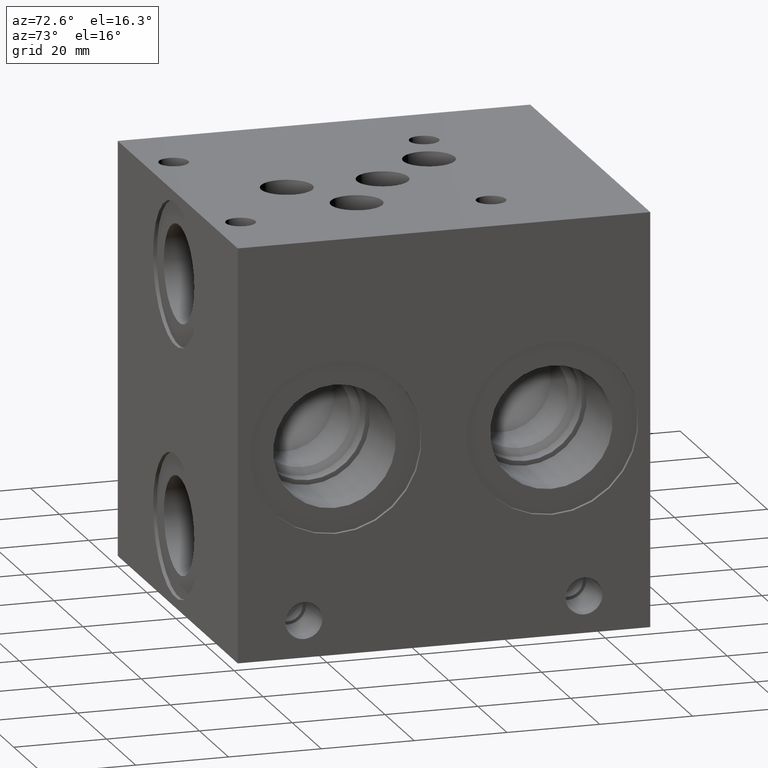
[diagram: clean part render]
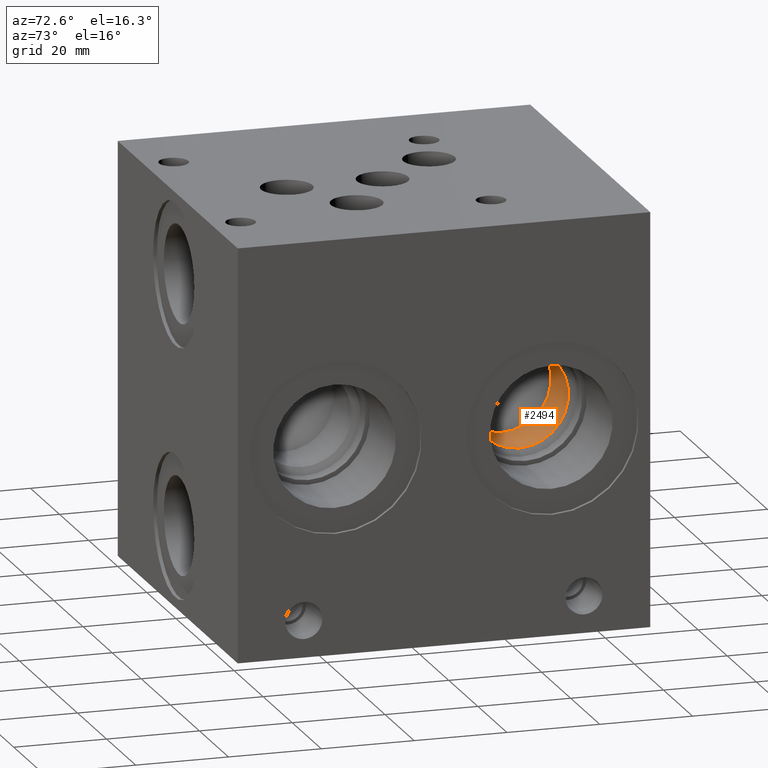
[diagram: same view with one face highlighted and labeled with its STEP entity id]
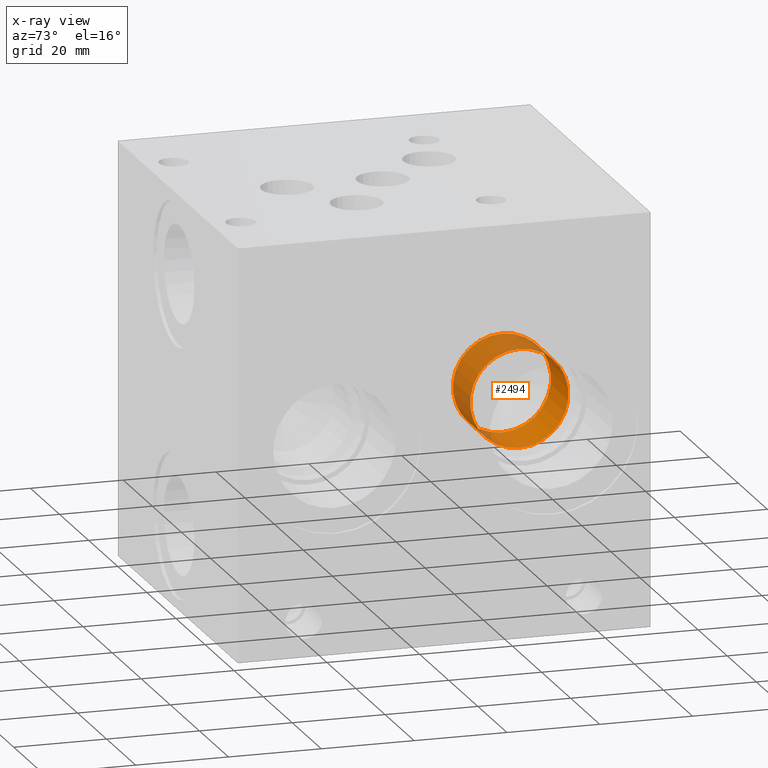
[diagram: x-ray of the same camera — body ghosted, the highlighted face saturated]
A machine part, auxiliary view. The second image highlights one B-rep face of the part: STEP entity #2494.
The next image is the same camera in x-ray: the body ghosted, the highlighted face saturated — about 53% of this face is hidden behind the body in this view.
In plain terms, the highlighted cylindrical surface (bore or boss wall) has radius 10.5918 mm, axis along (-1, 0, 0).
Its self-contained STEP definition (entity closure, byte-faithful):
#2454=CARTESIAN_POINT('',(2.352755062252069,2.670000000000000,1.333000000000000));
#2455=VERTEX_POINT('',#2454);
#2456=CARTESIAN_POINT('',(2.352755062252069,2.670000000000000,1.750000000000000));
#2457=DIRECTION('',(-1.0,0.0,0.0));
#2458=DIRECTION('',(0.0,-1.0,0.0));
#2459=AXIS2_PLACEMENT_3D('',#2456,#2457,#2458);
#2460=CIRCLE('',#2459,0.417000000000000);
#2461=EDGE_CURVE('',#2455,#2455,#2460,.T.);
#2466=CARTESIAN_POINT('',(2.352755062252069,2.670000000000000,1.750000000000000));
#2467=DIRECTION('',(-1.0,0.0,0.0));
#2468=DIRECTION('',(0.0,-1.0,0.0));
#2469=AXIS2_PLACEMENT_3D('',#2466,#2467,#2468);
#2470=CYLINDRICAL_SURFACE('',#2469,0.417000000000000);
#2471=ORIENTED_EDGE('',*,*,#2461,.F.);
#2472=EDGE_LOOP('',(#2471));
#2473=FACE_OUTER_BOUND('',#2472,.T.);
#2474=CARTESIAN_POINT('',(1.882005062252070,2.670000000000000,1.333000000000000));
#2475=VERTEX_POINT('',#2474);
#2476=CARTESIAN_POINT('',(1.882005062252070,2.670000000000000,2.167000000000000));
#2477=VERTEX_POINT('',#2476);
#2478=CARTESIAN_POINT('',(1.882005062252070,2.670000000000000,1.750000000000000));
#2479=DIRECTION('',(-1.0,0.0,0.0));
#2480=DIRECTION('',(0.0,-1.0,0.0));
#2481=AXIS2_PLACEMENT_3D('',#2478,#2479,#2480);
#2482=CIRCLE('',#2481,0.417000000000000);
#2483=EDGE_CURVE('',#2475,#2477,#2482,.T.);
#2484=ORIENTED_EDGE('',*,*,#2483,.T.);
#2485=CARTESIAN_POINT('',(1.882005062252070,2.670000000000000,1.750000000000000));
#2486=DIRECTION('',(-1.0,0.0,0.0));
#2487=DIRECTION('',(0.0,-1.0,0.0));
#2488=AXIS2_PLACEMENT_3D('',#2485,#2486,#2487);
#2489=CIRCLE('',#2488,0.417000000000000);
#2490=EDGE_CURVE('',#2477,#2475,#2489,.T.);
#2491=ORIENTED_EDGE('',*,*,#2490,.T.);
#2492=EDGE_LOOP('',(#2484,#2491));
#2493=FACE_BOUND('',#2492,.T.);
#2494=ADVANCED_FACE('',(#2473,#2493),#2470,.F.);